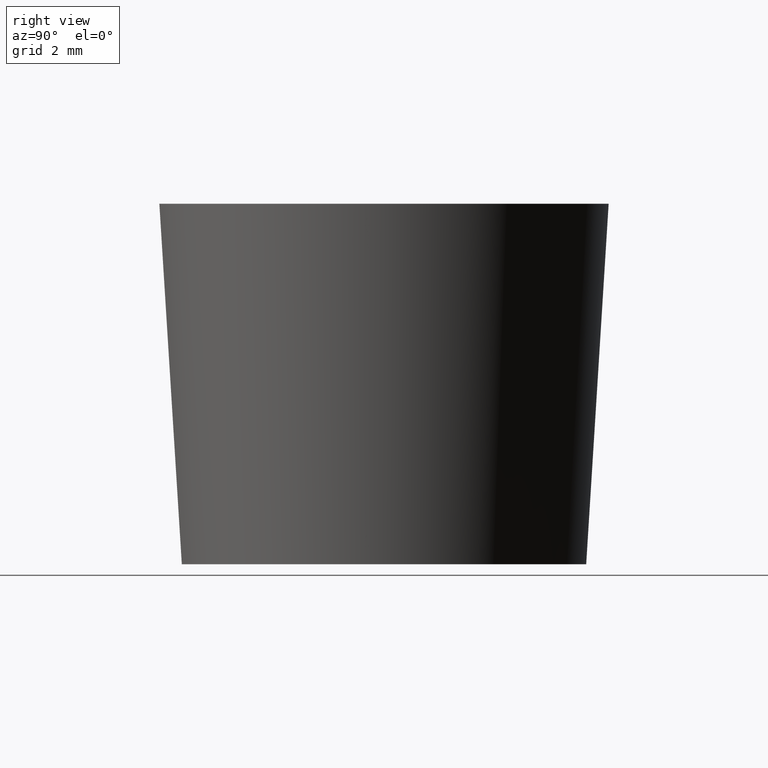
[diagram: clean part render]
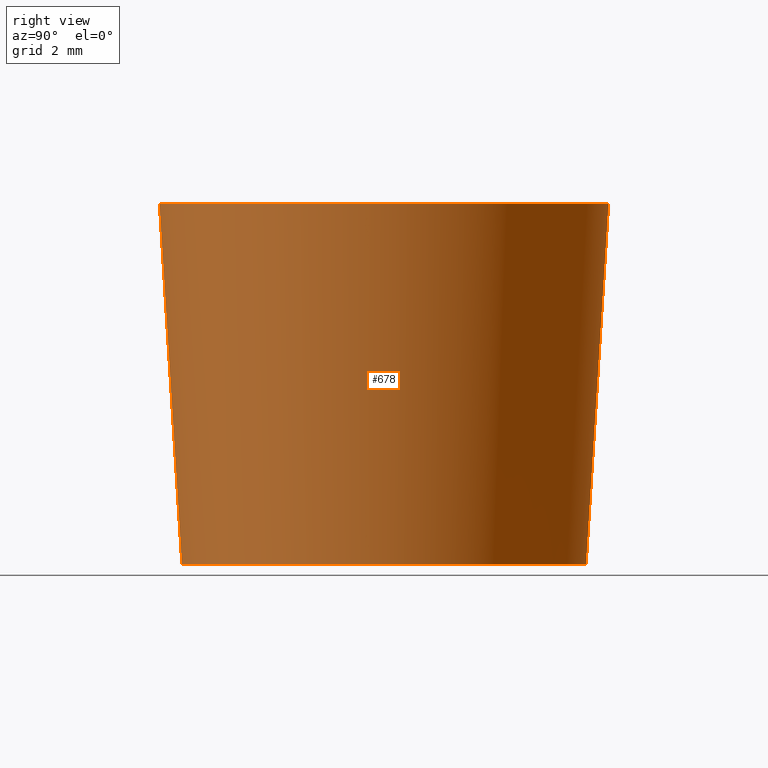
[diagram: same view with one face highlighted and labeled with its STEP entity id]
A machine part, right view. The second image highlights one B-rep face of the part: STEP entity #678.
In plain terms, the highlighted face is a freeform B-spline surface patch.
Its self-contained STEP definition (entity closure, byte-faithful):
#517=CARTESIAN_POINT('',(-0.353062357360180,4.486128245514117,-0.000000598405103));
#518=VERTEX_POINT('',#517);
#532=CARTESIAN_POINT('',(0.353062357360179,-4.486128245514117,-0.000000598405103));
#533=VERTEX_POINT('',#532);
#549=CARTESIAN_POINT('',(0.392292609547285,-4.984586864029133,7.999999514504765));
#550=VERTEX_POINT('',#549);
#551=CARTESIAN_POINT('',(0.353062357360179,-4.486128245514117,-0.000000598405103));
#552=CARTESIAN_POINT('',(0.392292609547285,-4.984586864029133,7.999999514504765));
#553=QUASI_UNIFORM_CURVE('',1,(#551,#552),.UNSPECIFIED.,.F.,.U.);
#554=EDGE_CURVE('',#533,#550,#553,.T.);
#573=CARTESIAN_POINT('',(-0.392292609547286,4.984586864029133,7.999999514504763));
#574=VERTEX_POINT('',#573);
#588=CARTESIAN_POINT('',(-0.353062357360180,4.486128245514117,-0.000000598405103));
#589=CARTESIAN_POINT('',(-0.392292609547286,4.984586864029133,7.999999514504763));
#590=QUASI_UNIFORM_CURVE('',1,(#588,#589),.UNSPECIFIED.,.F.,.U.);
#591=EDGE_CURVE('',#518,#574,#590,.T.);
#596=CARTESIAN_POINT('',(0.352085192078707,-4.473666535127410,-0.200000000000000));
#597=CARTESIAN_POINT('',(4.825751727206116,-4.121581343048703,-0.200000000000000));
#598=CARTESIAN_POINT('',(4.473666535127410,0.352085192078707,-0.200000000000000));
#599=CARTESIAN_POINT('',(4.121581343048703,4.825751727206116,-0.200000000000000));
#600=CARTESIAN_POINT('',(-0.352085192078707,4.473666535127410,-0.200000000000000));
#601=CARTESIAN_POINT('',(0.393300735803241,-4.997359672004095,8.205000000000000));
#602=CARTESIAN_POINT('',(5.390660407807336,-4.604058936200854,8.205000000000000));
#603=CARTESIAN_POINT('',(4.997359672004095,0.393300735803241,8.205000000000000));
#604=CARTESIAN_POINT('',(4.604058936200854,5.390660407807336,8.205000000000000));
#605=CARTESIAN_POINT('',(-0.393300735803241,4.997359672004095,8.205000000000000));
#613=(BOUNDED_SURFACE()B_SPLINE_SURFACE(2,1,((#596,#601),(#597,#602),(#598,#603),(#599,#604),(#600,#605)),.UNSPECIFIED.,.F.,.F.,.U.)B_SPLINE_SURFACE_WITH_KNOTS((3,2,3),(2,2),(0.0,8.305499692533521,16.610999385067039),(0.0,8.421400015594573),.UNSPECIFIED.)GEOMETRIC_REPRESENTATION_ITEM()RATIONAL_B_SPLINE_SURFACE(((1.0,1.0),(0.707106781186548,0.707106781186548),(1.0,1.0),(0.707106781186548,0.707106781186548),(1.0,1.0)))REPRESENTATION_ITEM('')SURFACE());
#614=CARTESIAN_POINT('',(4.500000000000000,0.0,0.0));
#615=VERTEX_POINT('',#614);
#616=CARTESIAN_POINT('',(-0.353062357360180,4.486128245514117,-0.000000598405103));
#617=CARTESIAN_POINT('',(-0.176803688009538,4.500000000000000,0.0));
#618=CARTESIAN_POINT('',(0.0,4.500000000000000,0.0));
#619=CARTESIAN_POINT('',(4.500000000000000,4.500000000000000,0.0));
#620=CARTESIAN_POINT('',(4.500000000000000,0.0,0.0));
#628=(BOUNDED_CURVE()B_SPLINE_CURVE(2,(#616,#617,#618,#619,#620),.UNSPECIFIED.,.F.,.U.)B_SPLINE_CURVE_WITH_KNOTS((3,2,3),(0.236331437068440,0.250000000000000,0.500000000000000),.UNSPECIFIED.)CURVE()GEOMETRIC_REPRESENTATION_ITEM()RATIONAL_B_SPLINE_CURVE((0.969723640902832,0.983986282425685,1.0,0.707106781186547,1.0))REPRESENTATION_ITEM(''));
#629=EDGE_CURVE('',#518,#615,#628,.T.);
#630=ORIENTED_EDGE('',*,*,#629,.F.);
#631=ORIENTED_EDGE('',*,*,#591,.T.);
#632=CARTESIAN_POINT('',(5.0,0.0,8.0));
#633=VERTEX_POINT('',#632);
#634=CARTESIAN_POINT('',(-0.392292609547286,4.984586864029133,7.999999514504763));
#635=CARTESIAN_POINT('',(-0.196449095031061,5.0,8.0));
#636=CARTESIAN_POINT('',(0.0,5.0,8.0));
#637=CARTESIAN_POINT('',(5.000000000000001,5.000000000000001,8.0));
#638=CARTESIAN_POINT('',(5.0,0.0,8.0));
#646=(BOUNDED_CURVE()B_SPLINE_CURVE(2,(#634,#635,#636,#637,#638),.UNSPECIFIED.,.F.,.U.)B_SPLINE_CURVE_WITH_KNOTS((3,2,3),(0.236331399221592,0.250000000000000,0.500000000000000),.UNSPECIFIED.)CURVE()GEOMETRIC_REPRESENTATION_ITEM()RATIONAL_B_SPLINE_CURVE((0.969723561919263,0.983986238085344,1.0,0.707106781186548,1.0))REPRESENTATION_ITEM(''));
#647=EDGE_CURVE('',#574,#633,#646,.T.);
#648=ORIENTED_EDGE('',*,*,#647,.T.);
#649=CARTESIAN_POINT('',(5.0,0.0,8.0));
#650=CARTESIAN_POINT('',(4.999999999999999,-4.621955124665981,8.0));
#651=CARTESIAN_POINT('',(0.392292609547285,-4.984586864029133,7.999999514504765));
#659=(BOUNDED_CURVE()B_SPLINE_CURVE(2,(#649,#650,#651),.UNSPECIFIED.,.F.,.U.)B_SPLINE_CURVE_WITH_KNOTS((3,3),(0.500000000000000,0.736331399221592),.UNSPECIFIED.)CURVE()GEOMETRIC_REPRESENTATION_ITEM()RATIONAL_B_SPLINE_CURVE((1.0,0.723120543101204,0.969723561919263))REPRESENTATION_ITEM(''));
#660=EDGE_CURVE('',#633,#550,#659,.T.);
#661=ORIENTED_EDGE('',*,*,#660,.T.);
#662=ORIENTED_EDGE('',*,*,#554,.F.);
#663=CARTESIAN_POINT('',(4.500000000000000,0.0,0.0));
#664=CARTESIAN_POINT('',(4.500000000000000,-4.159760533424683,0.0));
#665=CARTESIAN_POINT('',(0.353062357360179,-4.486128245514117,-0.000000598405103));
#673=(BOUNDED_CURVE()B_SPLINE_CURVE(2,(#663,#664,#665),.UNSPECIFIED.,.F.,.U.)B_SPLINE_CURVE_WITH_KNOTS((3,3),(0.500000000000000,0.736331437068440),.UNSPECIFIED.)CURVE()GEOMETRIC_REPRESENTATION_ITEM()RATIONAL_B_SPLINE_CURVE((1.0,0.723120498760862,0.969723640902832))REPRESENTATION_ITEM(''));
#674=EDGE_CURVE('',#615,#533,#673,.T.);
#675=ORIENTED_EDGE('',*,*,#674,.F.);
#676=EDGE_LOOP('',(#630,#631,#648,#661,#662,#675));
#677=FACE_OUTER_BOUND('',#676,.T.);
#678=ADVANCED_FACE('',(#677),#613,.T.);